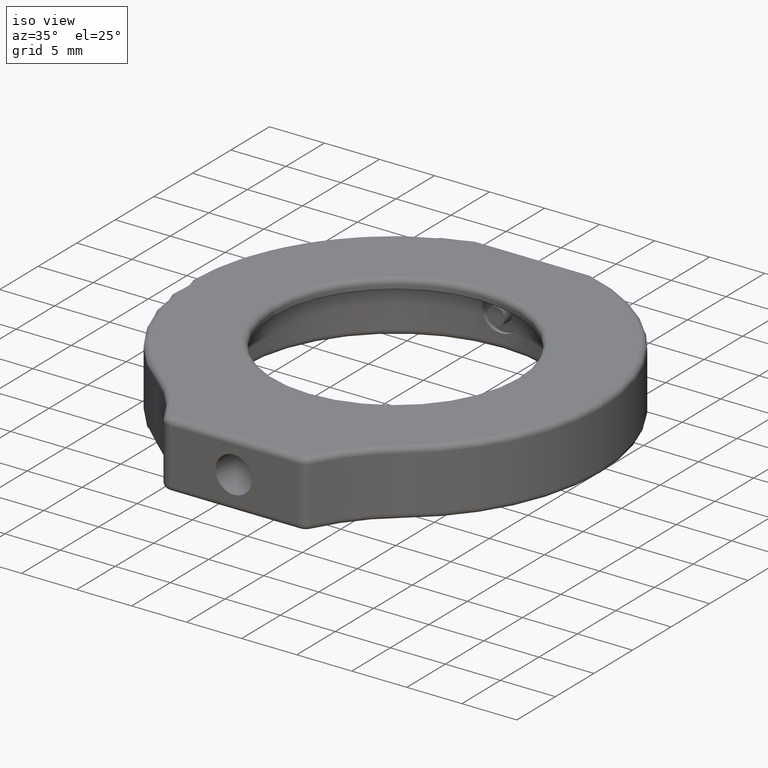
[diagram: clean part render]
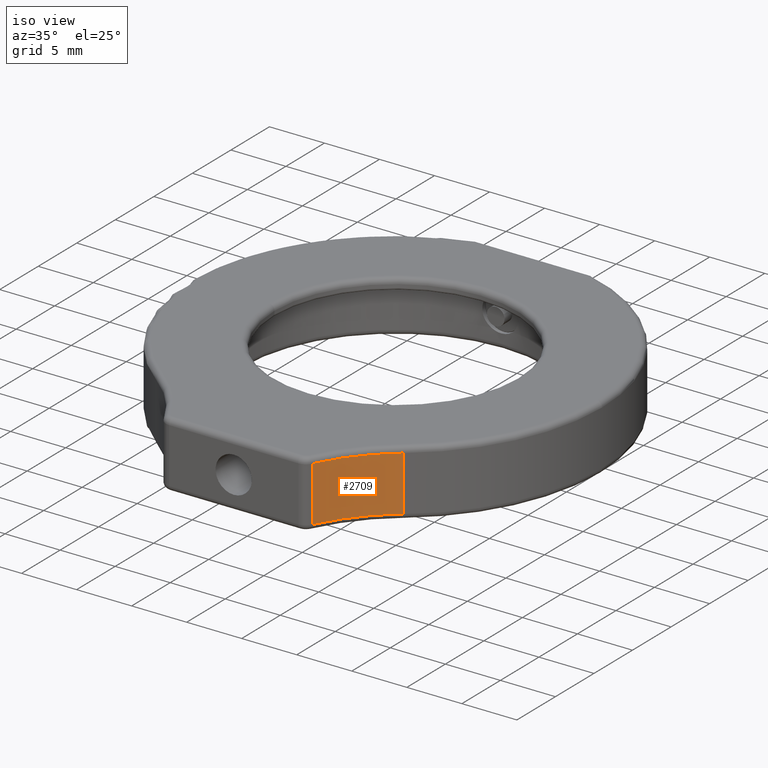
[diagram: same view with one face highlighted and labeled with its STEP entity id]
A machine part, iso view. The second image highlights one B-rep face of the part: STEP entity #2709.
In plain terms, the highlighted cylindrical surface (partial cylindrical patch) has radius 15 mm, axis along (-0, -0, -1).
Its self-contained STEP definition (entity closure, byte-faithful):
#135 = DIRECTION ( 'NONE',  ( -1.000000000000000000, 0.0000000000000000000, 0.0000000000000000000 ) ) ;
#145 = VERTEX_POINT ( 'NONE', #1068 ) ;
#162 = EDGE_CURVE ( 'NONE', #2668, #145, #176, .T. ) ;
#176 = LINE ( 'NONE', #194, #2364 ) ;
#194 = CARTESIAN_POINT ( 'NONE',  ( 9.427361814051458600, -17.86025296637969000, 44.99999999998590300 ) ) ;
#317 = CARTESIAN_POINT ( 'NONE',  ( 13.91598372073245200, -12.42400237701314200, 44.49999999998590300 ) ) ;
#340 = LINE ( 'NONE', #2494, #778 ) ;
#385 = EDGE_LOOP ( 'NONE', ( #2779, #585, #695, #2413 ) ) ;
#403 = EDGE_CURVE ( 'NONE', #2573, #2142, #340, .T. ) ;
#420 = AXIS2_PLACEMENT_3D ( 'NONE', #2584, #2399, #2615 ) ;
#585 = ORIENTED_EDGE ( 'NONE', *, *, #2268, .T. ) ;
#695 = ORIENTED_EDGE ( 'NONE', *, *, #403, .F. ) ;
#733 = CIRCLE ( 'NONE', #420, 15.00000000000000000 ) ;
#778 = VECTOR ( 'NONE', #1651, 1000.000000000000000 ) ;
#809 = CARTESIAN_POINT ( 'NONE',  ( 9.427361814051458600, -17.86025296637969000, 44.49999999998590300 ) ) ;
#824 = DIRECTION ( 'NONE',  ( -0.0000000000000000000, -0.0000000000000000000, -1.000000000000000000 ) ) ;
#1005 = CARTESIAN_POINT ( 'NONE',  ( 22.91448188588902800, -24.42512860631653400, 44.99999999998590300 ) ) ;
#1068 = CARTESIAN_POINT ( 'NONE',  ( 9.427361814051458600, -17.86025296637969000, 39.49999999998591000 ) ) ;
#1457 = DIRECTION ( 'NONE',  ( 1.000000000000000000, 0.0000000000000000000, 0.0000000000000000000 ) ) ;
#1464 = EDGE_CURVE ( 'NONE', #2573, #2668, #2391, .T. ) ;
#1648 = AXIS2_PLACEMENT_3D ( 'NONE', #1005, #824, #135 ) ;
#1651 = DIRECTION ( 'NONE',  ( -0.0000000000000000000, -0.0000000000000000000, -1.000000000000000000 ) ) ;
#1858 = DIRECTION ( 'NONE',  ( -0.0000000000000000000, 0.0000000000000000000, 1.000000000000000000 ) ) ;
#1896 = AXIS2_PLACEMENT_3D ( 'NONE', #2072, #1858, #1457 ) ;
#2072 = CARTESIAN_POINT ( 'NONE',  ( 22.91448188588902800, -24.42512860631653400, 44.49999999998590300 ) ) ;
#2142 = VERTEX_POINT ( 'NONE', #2798 ) ;
#2268 = EDGE_CURVE ( 'NONE', #145, #2142, #733, .T. ) ;
#2311 = CYLINDRICAL_SURFACE ( 'NONE', #1648, 15.00000000000000200 ) ;
#2364 = VECTOR ( 'NONE', #2552, 1000.000000000000000 ) ;
#2391 = CIRCLE ( 'NONE', #1896, 15.00000000000000000 ) ;
#2399 = DIRECTION ( 'NONE',  ( 0.0000000000000000000, -0.0000000000000000000, -1.000000000000000000 ) ) ;
#2413 = ORIENTED_EDGE ( 'NONE', *, *, #1464, .T. ) ;
#2446 = FACE_OUTER_BOUND ( 'NONE', #385, .T. ) ;
#2494 = CARTESIAN_POINT ( 'NONE',  ( 13.91598372073245200, -12.42400237701314200, 44.99999999998590300 ) ) ;
#2552 = DIRECTION ( 'NONE',  ( -0.0000000000000000000, -0.0000000000000000000, -1.000000000000000000 ) ) ;
#2573 = VERTEX_POINT ( 'NONE', #317 ) ;
#2584 = CARTESIAN_POINT ( 'NONE',  ( 22.91448188588902800, -24.42512860631653400, 39.49999999998591000 ) ) ;
#2615 = DIRECTION ( 'NONE',  ( 1.000000000000000000, 3.469446951953614200E-015, 0.0000000000000000000 ) ) ;
#2668 = VERTEX_POINT ( 'NONE', #809 ) ;
#2709 = ADVANCED_FACE ( 'NONE', ( #2446 ), #2311, .F. ) ;
#2779 = ORIENTED_EDGE ( 'NONE', *, *, #162, .T. ) ;
#2798 = CARTESIAN_POINT ( 'NONE',  ( 13.91598372073245200, -12.42400237701314200, 39.49999999998591000 ) ) ;